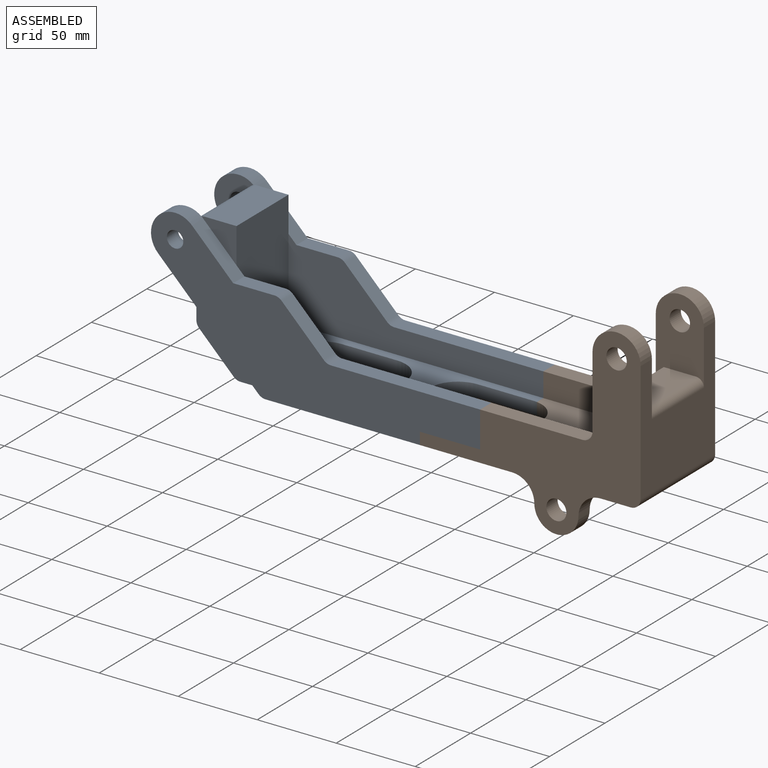
[diagram: assembled view]
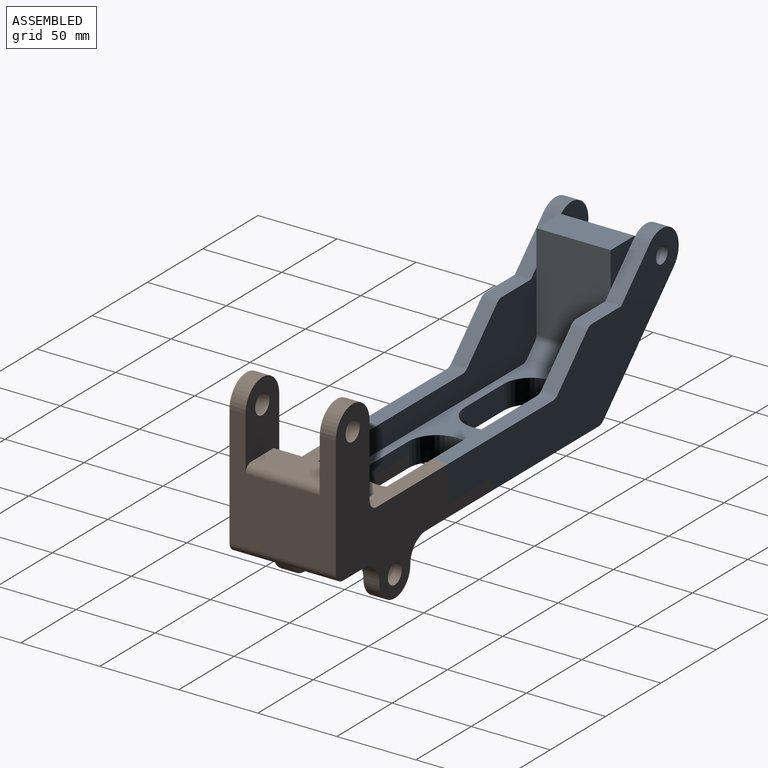
[diagram: assembled view, second angle]
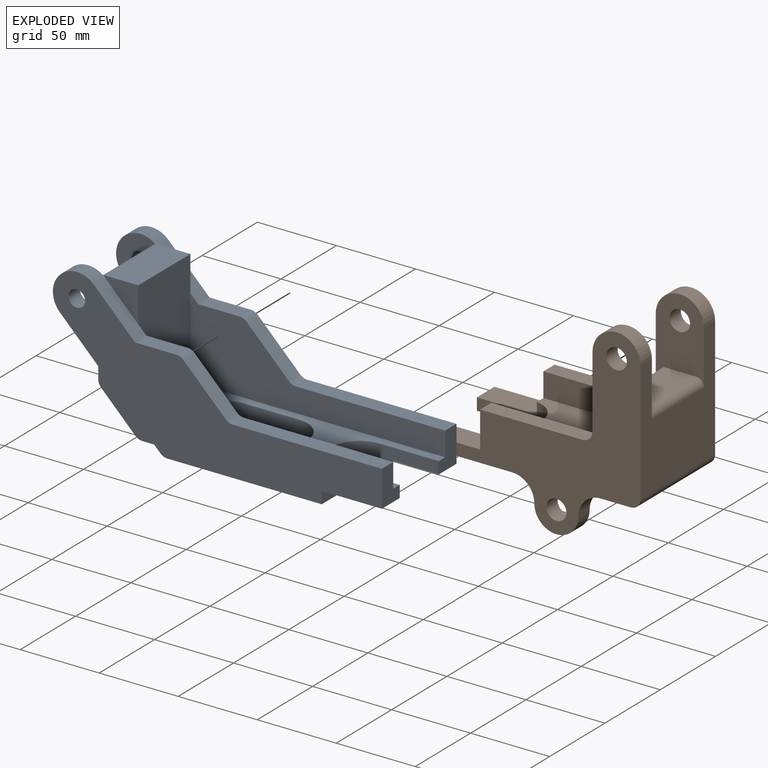
[diagram: exploded view]
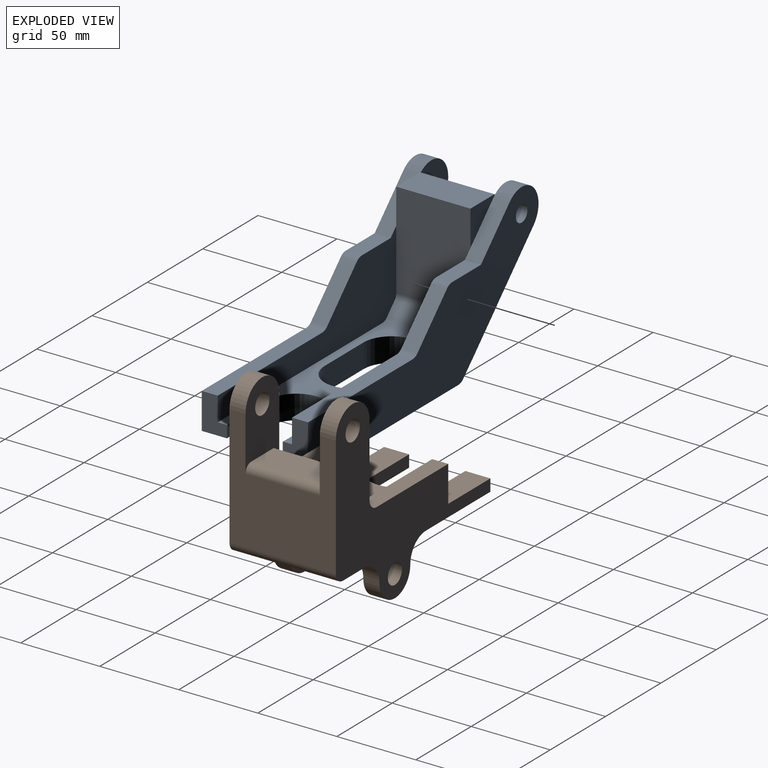
[diagram: exploded view, second angle]
ASSEMBLY  parts=2 mates=3
PART A: 57 faces, bbox 208.3x67.3x91.4 mm
  f0: plane 148.98x46.99mm, normal (0,0,1), area 2923.1mm2, adj f2,f3,f8,f9,f10,f11,f12,f44
  f1: plane 120.56x67.31mm, normal (0,0,-1), area 4926.6mm2, adj f6,f7,f8,f14,f29,f35,f37,f43
  f2: plane 161.29x50.76mm, normal (0,1,0), area 3911.9mm2, adj f0,f5,f22,f23,f24,f25,f26,f33
  f3: plane 161.29x50.76mm, normal (0,-1,0), area 3911.9mm2, adj f0,f4,f15,f16,f17,f18,f19,f33
  f4: plane 94.4x10.16mm, normal (0,0,1), area 959.1mm2, adj f3,f7,f15,f52
  f5: plane 94.4x10.16mm, normal (0,0,1), area 959.1mm2, adj f2,f6,f22,f55
  f6: plane 208.28x91.44mm, normal (0,-1,0), area 7517.9mm2, adj f1,f5,f22,f23,f24,f25,f26,f27
  f7: plane 208.28x91.44mm, normal (0,1,0), area 7517.9mm2, adj f1,f4,f13,f14,f15,f16,f17,f18
  f8: cylinder r=17.78mm len=35.56mm, axis (0,0,1), area 844.6mm2, adj f0,f1,f9,f12,f51,f53,f54,f56
  f9: plane 35.12x7.62mm, normal (0,1,0), area 267.6mm2, adj f0,f8,f11,f54
  f10: cylinder r=17.78mm len=7.62mm, axis (0,0,1), area 19.4mm2, adj f0,f12,f51,f52
  f11: cylinder r=17.78mm len=7.62mm, axis (0,0,1), area 19.4mm2, adj f0,f9,f54,f55
  f12: plane 35.12x7.62mm, normal (0,-1,0), area 267.6mm2, adj f0,f8,f10,f51
  f13: plane 63.56x63.56mm, normal (-0.71,0,-0.71), area 913.3mm2, adj f7,f14,f20,f32,f37
  f14: cylinder r=6.35mm len=10.16mm, axis (0,1,0), area 50.7mm2, adj f1,f7,f13,f37
  f15: cylinder r=6.35mm len=10.16mm, axis (0,1,0), area 50.7mm2, adj f3,f4,f7,f16
  f16: plane 26.76x26.76mm, normal (0.71,0,0.71), area 384.5mm2, adj f3,f7,f15,f17
  f17: cylinder r=6.35mm len=10.16mm, axis (0,1,0), area 50.7mm2, adj f3,f7,f16,f18
  f18: plane 26.11x10.16mm, normal (0,0,1), area 265.2mm2, adj f3,f7,f17,f19
  f19: plane 26.02x26.02mm, normal (0.71,0,0.71), area 373.8mm2, adj f3,f7,f18,f20,f36
  f20: cylinder r=15.24mm len=26.02mm, axis (0,1,0), area 486.4mm2, adj f7,f13,f19,f32,f36
  f21: cylinder r=5.21mm len=10.41mm, axis (0,1,0), area 332.4mm2, adj f7,f32
  f22: cylinder r=6.35mm len=10.16mm, axis (0,1,0), area 50.7mm2, adj f2,f5,f6,f23
  f23: plane 26.76x26.76mm, normal (0.71,0,0.71), area 384.5mm2, adj f2,f6,f22,f24
  f24: cylinder r=6.35mm len=10.16mm, axis (0,1,0), area 50.7mm2, adj f2,f6,f23,f25
  f25: plane 26.11x10.16mm, normal (0,0,1), area 265.2mm2, adj f2,f6,f24,f26
  f26: plane 26.02x26.02mm, normal (0.71,0,0.71), area 373.8mm2, adj f2,f6,f25,f27,f34
  f27: cylinder r=15.24mm len=26.02mm, axis (0,1,0), area 486.4mm2, adj f6,f26,f28,f31,f34
  f28: plane 63.56x63.56mm, normal (-0.71,0,-0.71), area 913.3mm2, adj f6,f27,f29,f31,f35
  f29: cylinder r=6.35mm len=10.16mm, axis (0,1,0), area 50.7mm2, adj f1,f6,f28,f35
  f30: cylinder r=5.21mm len=10.41mm, axis (0,1,0), area 332.4mm2, adj f6,f31
  f31: plane 43.14x24.83mm, normal (0,1,0), area 563.3mm2, adj f27,f28,f30,f40,f46
  f32: plane 43.14x24.83mm, normal (0,-1,0), area 563.3mm2, adj f13,f20,f21,f40,f46
  f33: plane 46.99x7.23mm, normal (0.71,0,0.71), area 479.1mm2, adj f2,f3,f44,f45
  f34: plane 22.39x22.16mm, normal (0,-1,0), area 250.5mm2, adj f26,f27,f38,f39,f46
  f35: plane 50.93x48.3mm, normal (0,-1,0), area 842.9mm2, adj f1,f28,f29,f40,f41,f42,f43
  f36: plane 22.39x22.16mm, normal (0,1,0), area 250.5mm2, adj f19,f20,f38,f39,f46
  f37: plane 50.93x48.3mm, normal (0,1,0), area 842.9mm2, adj f1,f13,f14,f40,f41,f42,f43
  f38: plane 60.88x46.99mm, normal (1,0,0), area 2860.8mm2, adj f2,f3,f34,f36,f39,f45
  f39: plane 46.99x20.32mm, normal (0,0,1), area 954.8mm2, adj f34,f36,f38,f46
  f40: plane 55.28x46.99mm, normal (-1,0,0), area 2597.7mm2, adj f31,f32,f35,f37,f41,f46
  f41: cylinder r=6.35mm len=46.99mm, axis (0,1,0), area 234.4mm2, adj f35,f37,f40,f42
  f42: plane 46.99x21.68mm, normal (-0.71,0,-0.71), area 1440.7mm2, adj f35,f37,f41,f43
  f43: cylinder r=6.35mm len=46.99mm, axis (0,1,0), area 234.4mm2, adj f1,f35,f37,f42
  f44: cylinder r=5.08mm len=46.99mm, axis (0,-1,0), area 186.9mm2, adj f0,f2,f3,f33
  f45: cylinder r=5.08mm len=46.99mm, axis (0,1,0), area 188.1mm2, adj f2,f3,f33,f38
  f46: cylinder r=5.08mm len=46.99mm, axis (0,1,0), area 375mm2, adj f31,f32,f34,f36,f39,f40
  f47: cylinder r=17.78mm len=35.56mm, axis (0,0,1), area 851.3mm2, adj f0,f1,f48,f50
  f48: plane 35.12x15.24mm, normal (0,1,0), area 535.2mm2, adj f0,f1,f47,f49
  f49: cylinder r=17.78mm len=35.56mm, axis (0,0,1), area 851.3mm2, adj f0,f1,f48,f50
  f50: plane 35.12x15.24mm, normal (0,-1,0), area 535.2mm2, adj f0,f1,f47,f49
  f51: plane 38.1x16.06mm, normal (0,0,-1), area 605mm2, adj f7,f8,f10,f12,f52,f53
  f52: plane 22.86x16.06mm, normal (1,0,0), area 277.2mm2, adj f0,f3,f4,f7,f10,f51
  f53: plane 15.88x7.62mm, normal (1,0,0), area 121mm2, adj f1,f7,f8,f51
  f54: plane 38.1x16.06mm, normal (0,0,-1), area 605mm2, adj f6,f8,f9,f11,f55,f56
  f55: plane 22.86x16.06mm, normal (1,0,0), area 277.2mm2, adj f0,f2,f5,f6,f11,f54
  f56: plane 15.88x7.62mm, normal (1,0,0), area 121mm2, adj f1,f6,f8,f54
PART B: 43 faces, bbox 139.7x67.3x125.7 mm
  f0: cylinder r=17.78mm len=7.62mm, axis (0,0,1), area 3.3mm2, adj f6,f30,f37,f39
  f1: cylinder r=13.97mm len=27.94mm, axis (0,1,0), area 445.9mm2, adj f3,f4,f22,f35
  f2: cylinder r=6.35mm len=12.7mm, axis (0,1,0), area 405.4mm2, adj f22,f35
  f3: cylinder r=13.97mm len=13.97mm, axis (0,1,0), area 223mm2, adj f1,f6,f22,f35
  f4: cylinder r=13.97mm len=13.97mm, axis (0,-1,0), area 223mm2, adj f1,f6,f22,f35
  f5: plane 71.12x46.99mm, normal (0,0,1), area 2935.4mm2, adj f7,f8,f25,f29,f38,f41
  f6: plane 133.35x67.31mm, normal (0,0,-1), area 6079.2mm2, adj f0,f3,f4,f19,f21,f22,f27,f28
  f7: plane 101.6x82.55mm, normal (0,1,0), area 2409.4mm2, adj f5,f14,f15,f16,f17,f18,f20,f23
  f8: plane 101.6x82.55mm, normal (0,-1,0), area 2409.4mm2, adj f5,f9,f10,f11,f12,f13,f14,f23
  f9: cylinder r=15.24mm len=30.48mm, axis (0,1,0), area 486.4mm2, adj f8,f10,f14,f22
  f10: plane 45.72x10.16mm, normal (-1,0,0), area 464.5mm2, adj f8,f9,f11,f22
  f11: cylinder r=6.35mm len=10.16mm, axis (0,1,0), area 101.3mm2, adj f8,f10,f12,f22
  f12: plane 64.77x10.16mm, normal (0,0,1), area 658.1mm2, adj f8,f11,f22,f38
  f13: cylinder r=6.48mm len=12.95mm, axis (0,1,0), area 413.5mm2, adj f8,f22
  f14: plane 76.2x67.31mm, normal (1,0,0), area 3517.7mm2, adj f7,f8,f9,f15,f19,f21,f22,f26
  f15: cylinder r=15.24mm len=30.48mm, axis (0,1,0), area 486.4mm2, adj f7,f14,f16,f21
  f16: plane 45.72x10.16mm, normal (-1,0,0), area 464.5mm2, adj f7,f15,f17,f21
  f17: cylinder r=6.35mm len=10.16mm, axis (0,1,0), area 101.3mm2, adj f7,f16,f18,f21
  f18: plane 64.77x10.16mm, normal (0,0,1), area 658.1mm2, adj f7,f17,f21,f41
  f19: cylinder r=6.35mm len=67.31mm, axis (0,1,0), area 671.4mm2, adj f6,f14,f21,f22
  f20: cylinder r=6.48mm len=12.95mm, axis (0,1,0), area 413.5mm2, adj f7,f21
  f21: plane 139.7x125.73mm, normal (0,-1,0), area 5861.2mm2, adj f6,f14,f15,f16,f17,f18,f19,f20
  f22: plane 139.7x125.73mm, normal (0,1,0), area 5861.2mm2, adj f1,f2,f3,f4,f6,f9,f10,f11
  f23: plane 46.99x33.02mm, normal (-1,0,0), area 1551.6mm2, adj f7,f8,f24,f25
  f24: plane 46.99x20.32mm, normal (0,0,1), area 954.8mm2, adj f7,f8,f23,f26
  f25: cylinder r=5.08mm len=46.99mm, axis (0,1,0), area 375mm2, adj f5,f7,f8,f23
  f26: cylinder r=5.08mm len=46.99mm, axis (0,1,0), area 375mm2, adj f7,f8,f14,f24
  f27: cylinder r=17.78mm len=7.62mm, axis (0,0,1), area 3.3mm2, adj f6,f28,f40,f42
  f28: plane 35.12x7.62mm, normal (0,1,0), area 267.6mm2, adj f6,f27,f29,f40
  f29: cylinder r=17.78mm len=35.56mm, axis (0,0,1), area 812.4mm2, adj f5,f6,f28,f30,f37,f38,f40,f41
  f30: plane 35.12x7.62mm, normal (0,-1,0), area 267.6mm2, adj f0,f6,f29,f37
  f31: cylinder r=13.97mm len=27.94mm, axis (0,1,0), area 445.9mm2, adj f21,f33,f34,f36
  f32: cylinder r=6.35mm len=12.7mm, axis (0,1,0), area 405.4mm2, adj f21,f36
  f33: cylinder r=13.97mm len=13.97mm, axis (0,1,0), area 223mm2, adj f6,f21,f31,f36
  f34: cylinder r=13.97mm len=13.97mm, axis (0,-1,0), area 223mm2, adj f6,f21,f31,f36
  f35: plane 55.88x27.94mm, normal (0,-1,0), area 654mm2, adj f1,f2,f3,f4,f6
  f36: plane 55.88x27.94mm, normal (0,1,0), area 654mm2, adj f6,f31,f32,f33,f34
  f37: plane 38.1x16.06mm, normal (0,0,1), area 605mm2, adj f0,f22,f29,f30,f38,f39
  f38: plane 22.86x16.06mm, normal (-1,0,0), area 277.2mm2, adj f5,f8,f12,f22,f29,f37
  f39: plane 15.88x7.62mm, normal (-1,0,0), area 121mm2, adj f0,f6,f22,f37
  f40: plane 38.1x16.06mm, normal (0,0,1), area 605mm2, adj f21,f27,f28,f29,f41,f42
  f41: plane 22.86x16.06mm, normal (-1,0,0), area 277.2mm2, adj f5,f7,f18,f21,f29,f40
  f42: plane 15.88x7.62mm, normal (-1,0,0), area 121mm2, adj f6,f21,f27,f40
PLACE A t=(-88.49,33.67,30.15)mm fixed
PLACE B t=(-88.49,33.67,30.15)mm
MATE planar B.f21 <-> A.f6  axis (0,-1,0) through (162.6,-33.64,-20.02)mm
MATE planar B.f40 <-> A.f54  axis (0,0,1) through (85.5,-25.7,-38.43)mm
MATE planar B.f41 <-> A.f55  axis (-1,0,0) through (104.55,-33.64,-27)mm
